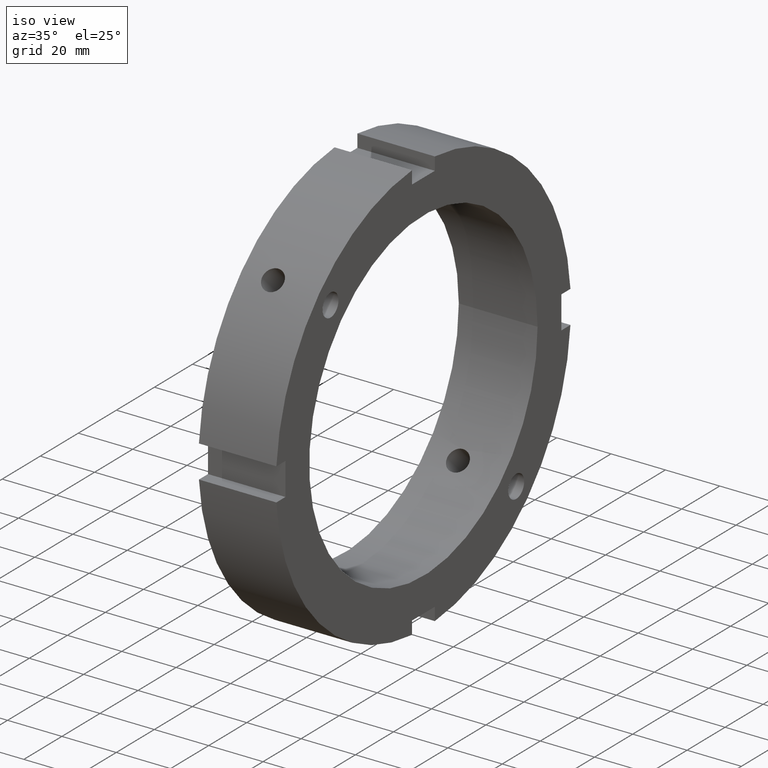
[diagram: clean part render]
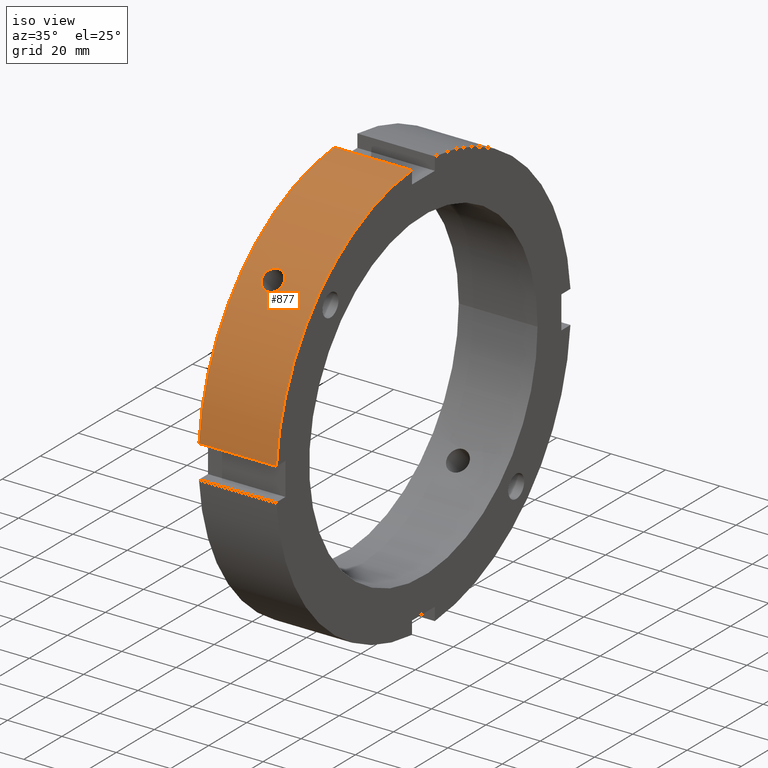
[diagram: same view with one face highlighted and labeled with its STEP entity id]
A machine part, iso view. The second image highlights one B-rep face of the part: STEP entity #877.
In plain terms, the highlighted cylindrical surface (partial cylindrical patch) has radius 77.5 mm, axis along (1, 0, 0).
Its self-contained STEP definition (entity closure, byte-faithful):
#201=CARTESIAN_POINT('',(11.999999999999989,-57.522622761370918,51.9364791899972));
#202=VERTEX_POINT('',#201);
#203=CARTESIAN_POINT('',(11.999999999999986,-57.522622761370897,51.936479189997215));
#204=CARTESIAN_POINT('',(11.50393694114201,-57.522622761370897,51.936479189997215));
#205=CARTESIAN_POINT('',(10.974867623706766,-57.456228106413448,52.01031217263116));
#206=CARTESIAN_POINT('',(10.001694682891342,-57.184603746029282,52.308812019340252));
#207=CARTESIAN_POINT('',(9.557583774859204,-56.979183892343869,52.533282042898115));
#208=CARTESIAN_POINT('',(8.856272733751965,-56.501165837504018,53.047067573834113));
#209=CARTESIAN_POINT('',(8.55229462653338,-56.196651661537125,53.370621118761186));
#210=CARTESIAN_POINT('',(8.149155881657666,-55.521939788238285,54.072183779836678));
#211=CARTESIAN_POINT('',(8.049999999999987,-55.151545014761112,54.450006069153758));
#212=CARTESIAN_POINT('',(8.04999999999999,-54.450006069153716,55.151545014761155));
#213=CARTESIAN_POINT('',(8.149155881657675,-54.072183779836621,55.521939788238328));
#214=CARTESIAN_POINT('',(8.552294626533389,-53.37062111876115,56.196651661537167));
#215=CARTESIAN_POINT('',(8.856272733751968,-53.04706757383407,56.501165837504061));
#216=CARTESIAN_POINT('',(9.557583774859207,-52.533282042898072,56.979183892343919));
#217=CARTESIAN_POINT('',(10.001694682891355,-52.308812019340216,57.184603746029325));
#218=CARTESIAN_POINT('',(10.974867623706777,-52.010312172631131,57.456228106413491));
#219=CARTESIAN_POINT('',(11.503936941142015,-51.936479189997172,57.522622761370947));
#220=CARTESIAN_POINT('',(12.496063058857965,-51.936479189997172,57.522622761370947));
#221=CARTESIAN_POINT('',(13.025132376293199,-52.010312172631131,57.456228106413477));
#222=CARTESIAN_POINT('',(13.998305317108619,-52.308812019340216,57.18460374602931));
#223=CARTESIAN_POINT('',(14.442416225140773,-52.533282042898072,56.979183892343919));
#224=CARTESIAN_POINT('',(15.143727266248012,-53.04706757383407,56.501165837504061));
#225=CARTESIAN_POINT('',(15.44770537346659,-53.370621118761143,56.196651661537175));
#226=CARTESIAN_POINT('',(15.850844118342305,-54.072183779836614,55.521939788238335));
#227=CARTESIAN_POINT('',(15.949999999999989,-54.450006069153716,55.151545014761155));
#228=CARTESIAN_POINT('',(15.949999999999989,-55.151545014761112,54.450006069153758));
#229=CARTESIAN_POINT('',(15.850844118342307,-55.521939788238285,54.072183779836685));
#230=CARTESIAN_POINT('',(15.447705373466592,-56.196651661537125,53.370621118761207));
#231=CARTESIAN_POINT('',(15.143727266248014,-56.501165837504018,53.047067573834113));
#232=CARTESIAN_POINT('',(14.442416225140775,-56.979183892343869,52.533282042898115));
#233=CARTESIAN_POINT('',(13.998305317108635,-57.184603746029282,52.308812019340252));
#234=CARTESIAN_POINT('',(13.025132376293211,-57.456228106413448,52.01031217263116));
#235=CARTESIAN_POINT('',(12.496063058857967,-57.522622761370911,51.936479189997215));
#236=CARTESIAN_POINT('',(11.999999999999989,-57.522622761370911,51.936479189997215));
#237=B_SPLINE_CURVE_WITH_KNOTS('',3,(#203,#204,#205,#206,#207,#208,#209,#210,#211,#212,#213,#214,#215,#216,#217,#218,#219,#220,#221,#222,#223,#224,#225,#226,#227,#228,#229,#230,#231,#232,#233,#234,#235,#236),.UNSPECIFIED.,.T.,.U.,(4,2,2,2,2,2,2,2,2,2,2,2,2,2,2,2,4),(0.0,0.148818917657393,0.297637835314786,0.44645671902642,0.595275602738055,0.744094486449689,0.892913370161323,1.041732287818716,1.190551205476109,1.339370123133501,1.488189040790894,1.637007924502528,1.785826808214163,1.934645691925797,2.083464575637431,2.232283493294824,2.381102410952217),.UNSPECIFIED.);
#238=EDGE_CURVE('',#202,#202,#237,.T.);
#621=CARTESIAN_POINT('',(0.49999999999998,-77.26739286400182,6.000000000000005));
#622=VERTEX_POINT('',#621);
#637=CARTESIAN_POINT('',(28.999999999999986,-77.26739286400182,6.000000000000005));
#638=VERTEX_POINT('',#637);
#645=CARTESIAN_POINT('',(0.49999999999998,-77.26739286400182,6.000000000000006));
#646=DIRECTION('',(1.0,0.0,0.0));
#647=VECTOR('',#646,28.500000000000007);
#648=LINE('',#645,#647);
#649=EDGE_CURVE('',#622,#638,#648,.T.);
#761=CARTESIAN_POINT('',(0.49999999999998,-5.999999999999992,77.26739286400182));
#762=VERTEX_POINT('',#761);
#771=CARTESIAN_POINT('',(28.999999999999986,-5.999999999999992,77.26739286400182));
#772=VERTEX_POINT('',#771);
#773=CARTESIAN_POINT('',(28.999999999999986,-5.999999999999992,77.26739286400182));
#774=DIRECTION('',(-1.0,0.0,0.0));
#775=VECTOR('',#774,28.500000000000007);
#776=LINE('',#773,#775);
#777=EDGE_CURVE('',#772,#762,#776,.T.);
#851=CARTESIAN_POINT('',(14.749999999999982,0.0,0.0));
#852=DIRECTION('',(1.0,0.0,0.0));
#853=DIRECTION('',(0.0,1.0,0.0));
#854=AXIS2_PLACEMENT_3D('',#851,#852,#853);
#855=CYLINDRICAL_SURFACE('',#854,77.5);
#856=ORIENTED_EDGE('',*,*,#649,.T.);
#857=CARTESIAN_POINT('',(28.999999999999986,0.0,0.0));
#858=DIRECTION('',(1.0,0.0,0.0));
#859=DIRECTION('',(0.0,1.0,0.0));
#860=AXIS2_PLACEMENT_3D('',#857,#858,#859);
#861=CIRCLE('',#860,77.5);
#862=EDGE_CURVE('',#772,#638,#861,.T.);
#863=ORIENTED_EDGE('',*,*,#862,.F.);
#864=ORIENTED_EDGE('',*,*,#777,.T.);
#865=CARTESIAN_POINT('',(0.49999999999998,0.0,0.0));
#866=DIRECTION('',(1.0,0.0,0.0));
#867=DIRECTION('',(0.0,1.0,0.0));
#868=AXIS2_PLACEMENT_3D('',#865,#866,#867);
#869=CIRCLE('',#868,77.5);
#870=EDGE_CURVE('',#762,#622,#869,.T.);
#871=ORIENTED_EDGE('',*,*,#870,.T.);
#872=EDGE_LOOP('',(#856,#863,#864,#871));
#873=FACE_OUTER_BOUND('',#872,.T.);
#874=ORIENTED_EDGE('',*,*,#238,.T.);
#875=EDGE_LOOP('',(#874));
#876=FACE_BOUND('',#875,.T.);
#877=ADVANCED_FACE('',(#873,#876),#855,.T.);